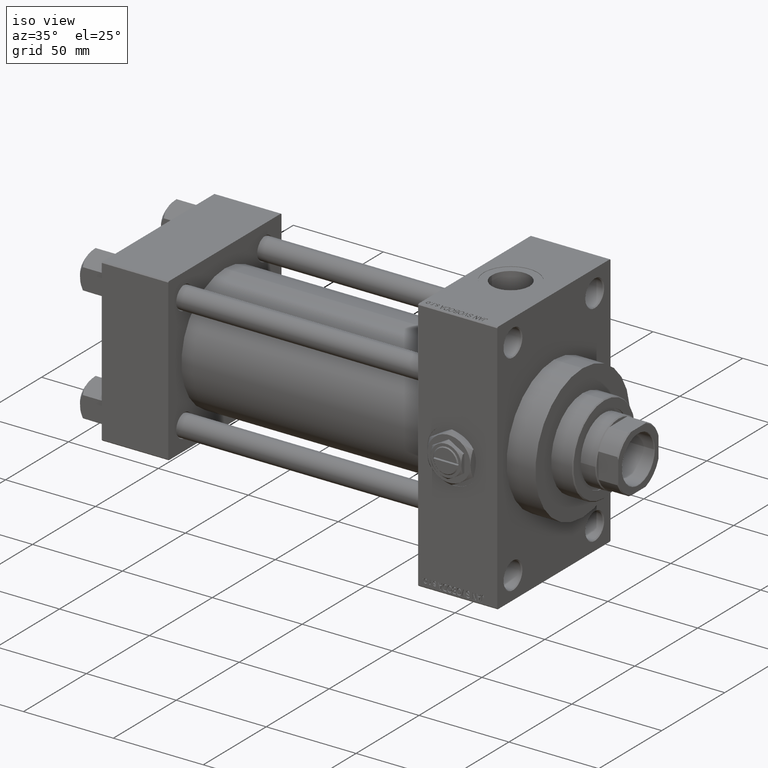
[diagram: clean part render]
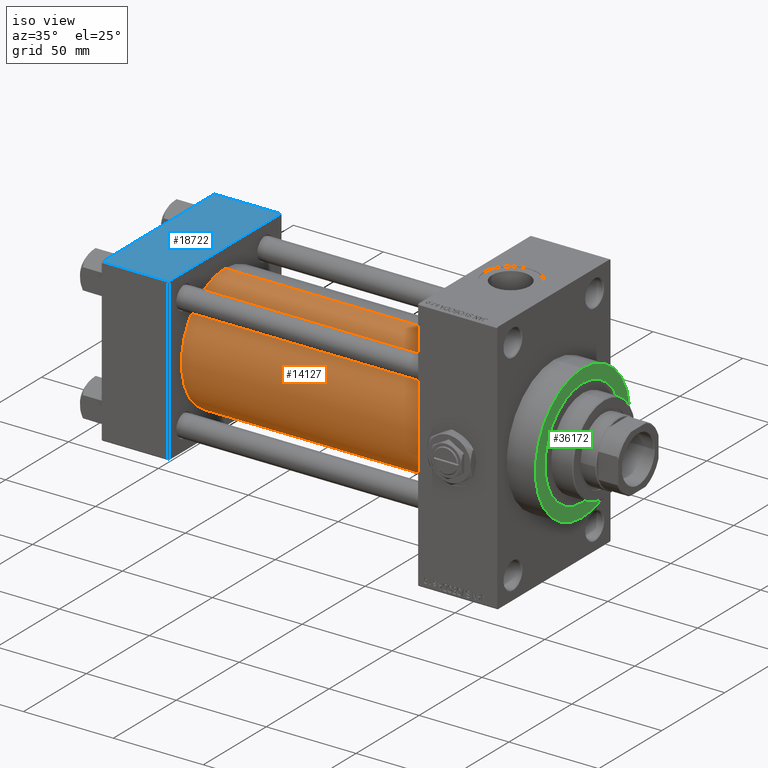
[diagram: same view with three faces highlighted in distinct colors, each labeled with its STEP entity id]
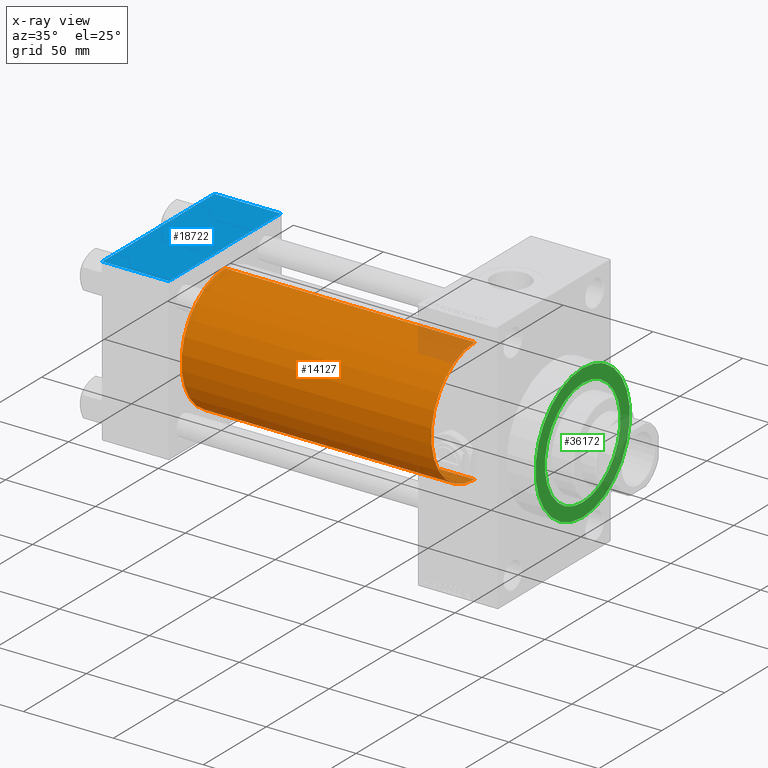
[diagram: x-ray of the same camera — body ghosted, the three highlighted faces saturated]
A machine part, iso view with three faces highlighted in distinct colors.
The next image is the same camera in x-ray (body ghosted, the three faces saturated) — at least one of them is partly hidden behind the body in this view.
Their STEP definitions:

[orange] entity #14127 — the highlighted cylindrical surface (partial cylindrical patch) has radius 34.5 mm, axis along (-1, -0, -0).
#748 = CARTESIAN_POINT ( 'NONE',  ( 176.0000000000000284, 1.622946243093158675E-15, -34.50000000000000000 ) ) ;
#2089 = CARTESIAN_POINT ( 'NONE',  ( 176.0000000000000284, 1.622946243093158675E-15, -34.50000000000000000 ) ) ;
#2792 = EDGE_CURVE ( 'NONE', #10025, #7404, #20159, .T. ) ;
#3757 = AXIS2_PLACEMENT_3D ( 'NONE', #30746, #11907, #23539 ) ;
#4692 = CARTESIAN_POINT ( 'NONE',  ( 176.0000000000000284, -2.602085213965210642E-15, 34.50000000000000000 ) ) ;
#5070 = DIRECTION ( 'NONE',  ( -1.000000000000000000, -0.000000000000000000, -0.000000000000000000 ) ) ;
#5699 = EDGE_CURVE ( 'NONE', #47171, #39824, #44718, .T. ) ;
#6278 = AXIS2_PLACEMENT_3D ( 'NONE', #24995, #25487, #32434 ) ;
#6789 = CIRCLE ( 'NONE', #21799, 34.50000000000000000 ) ;
#6852 = DIRECTION ( 'NONE',  ( -1.000000000000000000, -0.000000000000000000, -0.000000000000000000 ) ) ;
#7404 = VERTEX_POINT ( 'NONE', #21288 ) ;
#7863 = DIRECTION ( 'NONE',  ( 0.000000000000000000, 0.000000000000000000, 1.000000000000000000 ) ) ;
#10025 = VERTEX_POINT ( 'NONE', #748 ) ;
#10180 = EDGE_CURVE ( 'NONE', #39824, #7404, #6789, .T. ) ;
#11907 = DIRECTION ( 'NONE',  ( -1.000000000000000000, -0.000000000000000000, -0.000000000000000000 ) ) ;
#14127 = ADVANCED_FACE ( 'NONE', ( #39128 ), #34457, .T. ) ;
#14954 = ORIENTED_EDGE ( 'NONE', *, *, #5699, .T. ) ;
#15528 = ORIENTED_EDGE ( 'NONE', *, *, #21752, .F. ) ;
#20159 = LINE ( 'NONE', #2089, #20410 ) ;
#20410 = VECTOR ( 'NONE', #5070, 1000.000000000000000 ) ;
#21288 = CARTESIAN_POINT ( 'NONE',  ( 37.00000000000000711, 1.622946243093158675E-15, -34.50000000000000000 ) ) ;
#21752 = EDGE_CURVE ( 'NONE', #47171, #10025, #41065, .T. ) ;
#21799 = AXIS2_PLACEMENT_3D ( 'NONE', #33626, #25690, #7863 ) ;
#23508 = EDGE_LOOP ( 'NONE', ( #34311, #15528, #14954, #43421 ) ) ;
#23539 = DIRECTION ( 'NONE',  ( 0.000000000000000000, 0.000000000000000000, 1.000000000000000000 ) ) ;
#24995 = CARTESIAN_POINT ( 'NONE',  ( 176.0000000000000284, -2.602085213965210642E-15, 0.000000000000000000 ) ) ;
#25487 = DIRECTION ( 'NONE',  ( 1.000000000000000000, 0.000000000000000000, 0.000000000000000000 ) ) ;
#25690 = DIRECTION ( 'NONE',  ( 1.000000000000000000, -0.000000000000000000, 0.000000000000000000 ) ) ;
#29352 = VECTOR ( 'NONE', #6852, 1000.000000000000000 ) ;
#30746 = CARTESIAN_POINT ( 'NONE',  ( 176.0000000000000284, -2.602085213965210642E-15, 0.000000000000000000 ) ) ;
#31326 = CARTESIAN_POINT ( 'NONE',  ( 37.00000000000000711, -2.602085213965210642E-15, 34.50000000000000000 ) ) ;
#32434 = DIRECTION ( 'NONE',  ( 0.000000000000000000, 0.000000000000000000, -1.000000000000000000 ) ) ;
#33103 = CARTESIAN_POINT ( 'NONE',  ( 176.0000000000000284, -2.602085213965210642E-15, 34.50000000000000000 ) ) ;
#33626 = CARTESIAN_POINT ( 'NONE',  ( 37.00000000000000711, -2.602085213965210642E-15, 0.000000000000000000 ) ) ;
#34311 = ORIENTED_EDGE ( 'NONE', *, *, #2792, .F. ) ;
#34457 = CYLINDRICAL_SURFACE ( 'NONE', #3757, 34.50000000000000000 ) ;
#39128 = FACE_OUTER_BOUND ( 'NONE', #23508, .T. ) ;
#39824 = VERTEX_POINT ( 'NONE', #31326 ) ;
#41065 = CIRCLE ( 'NONE', #6278, 34.50000000000000000 ) ;
#43421 = ORIENTED_EDGE ( 'NONE', *, *, #10180, .T. ) ;
#44718 = LINE ( 'NONE', #33103, #29352 ) ;
#47171 = VERTEX_POINT ( 'NONE', #4692 ) ;

[blue] entity #18722 — the highlighted planar face has unit normal (0, 0, -1).
#3112 = ORIENTED_EDGE ( 'NONE', *, *, #23810, .T. ) ;
#5799 = LINE ( 'NONE', #20891, #8701 ) ;
#7585 = CARTESIAN_POINT ( 'NONE',  ( 0.000000000000000000, 45.00000000000000000, 45.00000000000000711 ) ) ;
#8701 = VECTOR ( 'NONE', #36008, 1000.000000000000000 ) ;
#11103 = DIRECTION ( 'NONE',  ( 1.000000000000000000, 0.000000000000000000, 0.000000000000000000 ) ) ;
#11784 = DIRECTION ( 'NONE',  ( 0.000000000000000000, -1.000000000000000000, -2.312964634635742957E-16 ) ) ;
#12399 = CARTESIAN_POINT ( 'NONE',  ( 0.000000000000000000, -44.49999999999997158, 44.99999999999998579 ) ) ;
#12960 = ORIENTED_EDGE ( 'NONE', *, *, #13965, .F. ) ;
#13965 = EDGE_CURVE ( 'NONE', #27345, #26011, #20307, .T. ) ;
#14096 = CARTESIAN_POINT ( 'NONE',  ( 37.00000000000000000, 44.49999999999997158, 45.00000000000000711 ) ) ;
#14379 = ORIENTED_EDGE ( 'NONE', *, *, #24592, .T. ) ;
#15369 = CARTESIAN_POINT ( 'NONE',  ( 37.00000000000000000, 45.00000000000000000, 45.00000000000000711 ) ) ;
#17867 = VERTEX_POINT ( 'NONE', #12399 ) ;
#18186 = VECTOR ( 'NONE', #11784, 1000.000000000000000 ) ;
#18722 = ADVANCED_FACE ( 'NONE', ( #24347 ), #39452, .F. ) ;
#19207 = LINE ( 'NONE', #7585, #18186 ) ;
#20307 = LINE ( 'NONE', #15369, #34583 ) ;
#20622 = CARTESIAN_POINT ( 'NONE',  ( 37.00000000000000000, 45.00000000000000000, 45.00000000000000711 ) ) ;
#20891 = CARTESIAN_POINT ( 'NONE',  ( 0.000000000000000000, 44.49999999999997158, 45.00000000000000711 ) ) ;
#21529 = CARTESIAN_POINT ( 'NONE',  ( 0.000000000000000000, 44.49999999999997158, 45.00000000000000711 ) ) ;
#21628 = CARTESIAN_POINT ( 'NONE',  ( 37.00000000000000000, -44.49999999999997158, 44.99999999999998579 ) ) ;
#23357 = EDGE_CURVE ( 'NONE', #17867, #26011, #37601, .T. ) ;
#23810 = EDGE_CURVE ( 'NONE', #27345, #32408, #5799, .T. ) ;
#24347 = FACE_OUTER_BOUND ( 'NONE', #42634, .T. ) ;
#24592 = EDGE_CURVE ( 'NONE', #32408, #17867, #19207, .T. ) ;
#26011 = VERTEX_POINT ( 'NONE', #21628 ) ;
#26083 = VECTOR ( 'NONE', #11103, 1000.000000000000000 ) ;
#27345 = VERTEX_POINT ( 'NONE', #14096 ) ;
#29038 = DIRECTION ( 'NONE',  ( 0.000000000000000000, 1.000000000000000000, 2.312964634635742957E-16 ) ) ;
#30413 = CARTESIAN_POINT ( 'NONE',  ( 37.00000000000000000, -44.50000000000000000, 44.99999999999998579 ) ) ;
#31479 = DIRECTION ( 'NONE',  ( 0.000000000000000000, -1.000000000000000000, -2.312964634635742957E-16 ) ) ;
#32264 = DIRECTION ( 'NONE',  ( 0.000000000000000000, 2.312964634635742957E-16, -1.000000000000000000 ) ) ;
#32408 = VERTEX_POINT ( 'NONE', #21529 ) ;
#34583 = VECTOR ( 'NONE', #31479, 1000.000000000000000 ) ;
#36008 = DIRECTION ( 'NONE',  ( -1.000000000000000000, 0.000000000000000000, 0.000000000000000000 ) ) ;
#37601 = LINE ( 'NONE', #30413, #26083 ) ;
#39452 = PLANE ( 'NONE',  #40171 ) ;
#40171 = AXIS2_PLACEMENT_3D ( 'NONE', #20622, #32264, #29038 ) ;
#42634 = EDGE_LOOP ( 'NONE', ( #14379, #44329, #12960, #3112 ) ) ;
#44329 = ORIENTED_EDGE ( 'NONE', *, *, #23357, .T. ) ;

[green] entity #36172 — the highlighted planar face has unit normal (1, 0, 0).
#2480 = CARTESIAN_POINT ( 'NONE',  ( 236.0000000000000568, 0.000000000000000000, 37.50000000000000711 ) ) ;
#2488 = CARTESIAN_POINT ( 'NONE',  ( 236.0000000000000568, 0.000000000000000000, 0.000000000000000000 ) ) ;
#2977 = DIRECTION ( 'NONE',  ( 1.000000000000000000, 0.000000000000000000, 0.000000000000000000 ) ) ;
#3963 = DIRECTION ( 'NONE',  ( 0.000000000000000000, 0.000000000000000000, -1.000000000000000000 ) ) ;
#6611 = CARTESIAN_POINT ( 'NONE',  ( 236.0000000000000568, 0.000000000000000000, 0.000000000000000000 ) ) ;
#7142 = EDGE_LOOP ( 'NONE', ( #29435, #24909 ) ) ;
#7485 = DIRECTION ( 'NONE',  ( 1.000000000000000000, 0.000000000000000000, 0.000000000000000000 ) ) ;
#7520 = VERTEX_POINT ( 'NONE', #31123 ) ;
#8397 = CARTESIAN_POINT ( 'NONE',  ( 236.0000000000000568, 0.000000000000000000, 0.000000000000000000 ) ) ;
#9131 = DIRECTION ( 'NONE',  ( 1.000000000000000000, 0.000000000000000000, 0.000000000000000000 ) ) ;
#10001 = EDGE_CURVE ( 'NONE', #7520, #11497, #38387, .T. ) ;
#10566 = DIRECTION ( 'NONE',  ( 0.000000000000000000, 0.000000000000000000, -1.000000000000000000 ) ) ;
#10816 = CIRCLE ( 'NONE', #38484, 30.00000000000000000 ) ;
#11497 = VERTEX_POINT ( 'NONE', #36495 ) ;
#12524 = EDGE_CURVE ( 'NONE', #11497, #7520, #10816, .T. ) ;
#14860 = VERTEX_POINT ( 'NONE', #2480 ) ;
#15399 = AXIS2_PLACEMENT_3D ( 'NONE', #45361, #7485, #22581 ) ;
#15675 = CIRCLE ( 'NONE', #44115, 37.50000000000000711 ) ;
#17019 = AXIS2_PLACEMENT_3D ( 'NONE', #43037, #9131, #31441 ) ;
#19169 = EDGE_CURVE ( 'NONE', #14860, #42019, #15675, .T. ) ;
#20000 = AXIS2_PLACEMENT_3D ( 'NONE', #2488, #2977, #40113 ) ;
#22581 = DIRECTION ( 'NONE',  ( 0.000000000000000000, 0.000000000000000000, -1.000000000000000000 ) ) ;
#24909 = ORIENTED_EDGE ( 'NONE', *, *, #32811, .T. ) ;
#25749 = FACE_OUTER_BOUND ( 'NONE', #7142, .T. ) ;
#29435 = ORIENTED_EDGE ( 'NONE', *, *, #19169, .T. ) ;
#29973 = PLANE ( 'NONE',  #20000 ) ;
#31123 = CARTESIAN_POINT ( 'NONE',  ( 236.0000000000000568, 0.000000000000000000, -30.00000000000000000 ) ) ;
#31441 = DIRECTION ( 'NONE',  ( 0.000000000000000000, 0.000000000000000000, -1.000000000000000000 ) ) ;
#32811 = EDGE_CURVE ( 'NONE', #42019, #14860, #38354, .T. ) ;
#34207 = ORIENTED_EDGE ( 'NONE', *, *, #10001, .F. ) ;
#35338 = CARTESIAN_POINT ( 'NONE',  ( 236.0000000000000568, 4.592425496802575156E-15, -37.50000000000000711 ) ) ;
#35742 = EDGE_LOOP ( 'NONE', ( #34207, #41401 ) ) ;
#36172 = ADVANCED_FACE ( 'NONE', ( #36896, #25749 ), #29973, .T. ) ;
#36495 = CARTESIAN_POINT ( 'NONE',  ( 236.0000000000000568, 3.673940397442059178E-15, 30.00000000000000000 ) ) ;
#36896 = FACE_BOUND ( 'NONE', #35742, .T. ) ;
#38119 = DIRECTION ( 'NONE',  ( 1.000000000000000000, 0.000000000000000000, 0.000000000000000000 ) ) ;
#38354 = CIRCLE ( 'NONE', #15399, 37.50000000000000711 ) ;
#38387 = CIRCLE ( 'NONE', #17019, 30.00000000000000000 ) ;
#38484 = AXIS2_PLACEMENT_3D ( 'NONE', #6611, #48217, #10566 ) ;
#40113 = DIRECTION ( 'NONE',  ( 0.000000000000000000, 0.000000000000000000, -1.000000000000000000 ) ) ;
#41401 = ORIENTED_EDGE ( 'NONE', *, *, #12524, .F. ) ;
#42019 = VERTEX_POINT ( 'NONE', #35338 ) ;
#43037 = CARTESIAN_POINT ( 'NONE',  ( 236.0000000000000568, 0.000000000000000000, 0.000000000000000000 ) ) ;
#44115 = AXIS2_PLACEMENT_3D ( 'NONE', #8397, #38119, #3963 ) ;
#45361 = CARTESIAN_POINT ( 'NONE',  ( 236.0000000000000568, 0.000000000000000000, 0.000000000000000000 ) ) ;
#48217 = DIRECTION ( 'NONE',  ( 1.000000000000000000, 0.000000000000000000, 0.000000000000000000 ) ) ;